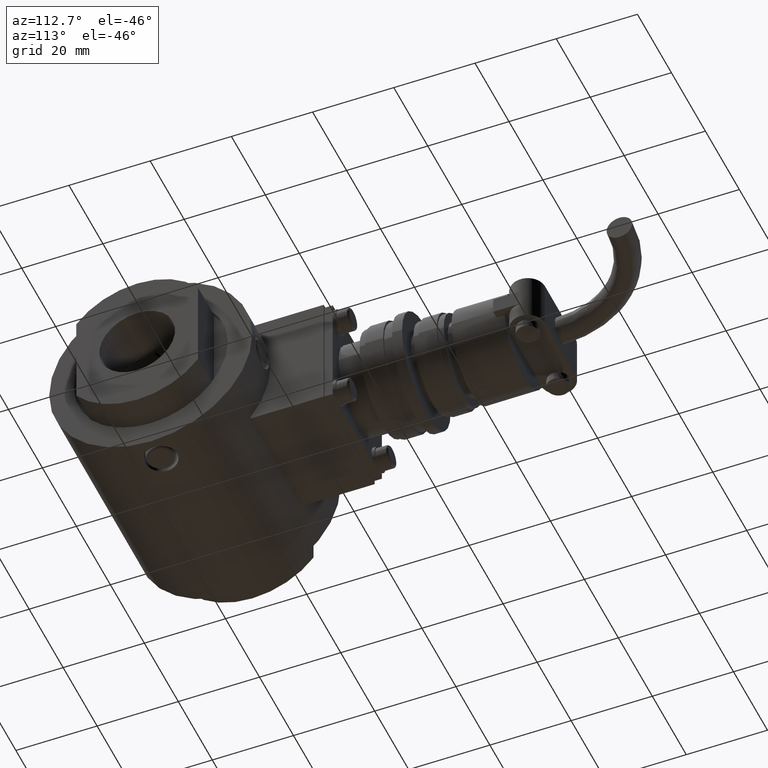
[diagram: clean part render]
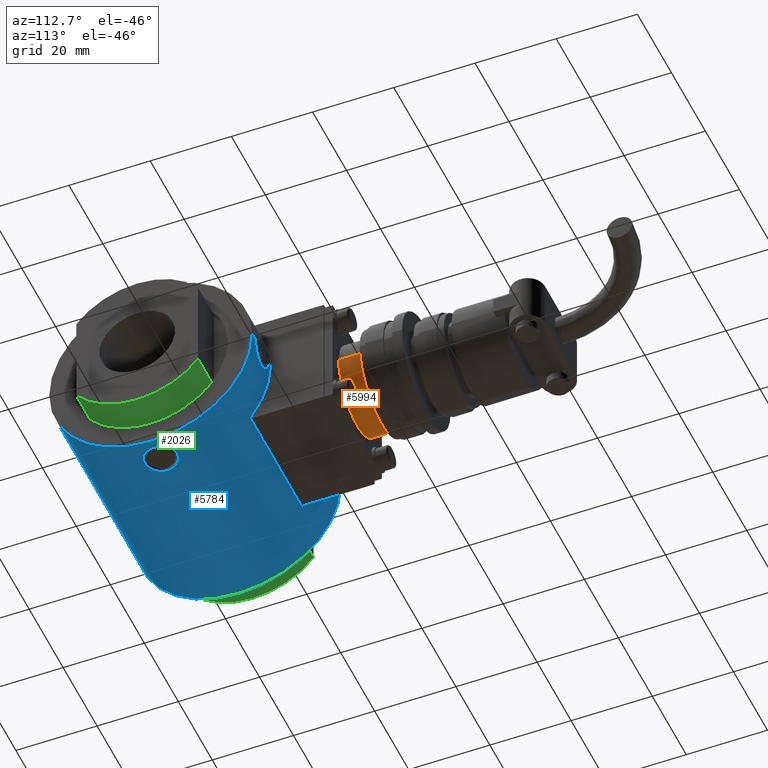
[diagram: same view with three faces highlighted in distinct colors, each labeled with its STEP entity id]
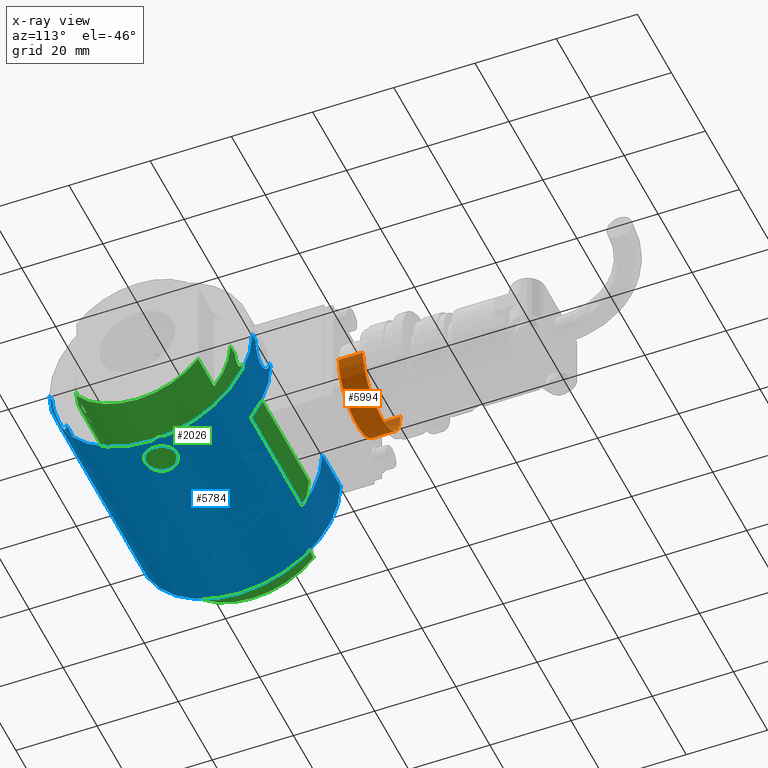
[diagram: x-ray of the same camera — body ghosted, the three highlighted faces saturated]
A machine part, auxiliary view with three faces highlighted in distinct colors.
The next image is the same camera in x-ray (body ghosted, the three faces saturated) — at least one of them is partly hidden behind the body in this view.
Their STEP definitions:

[orange] entity #5994 — the highlighted cylindrical surface (partial cylindrical patch) has radius 11 mm, axis along (-0, -1, 0).
#5953=CARTESIAN_POINT('',(-11.775000000000150,25.750000000000057,0.0));
#5954=DIRECTION('',(-1.224606E-016,1.0,0.0));
#5955=DIRECTION('',(-1.0,0.0,0.0));
#5956=AXIS2_PLACEMENT_3D('',#5953,#5954,#5955);
#5957=CYLINDRICAL_SURFACE('',#5956,10.999999999999970);
#5958=CARTESIAN_POINT('',(-22.775000000000119,28.750000000000057,0.0));
#5959=VERTEX_POINT('',#5958);
#5960=CARTESIAN_POINT('',(-22.775000000000119,22.750000000000057,0.0));
#5961=VERTEX_POINT('',#5960);
#5962=CARTESIAN_POINT('',(-22.775000000000119,28.750000000000057,0.0));
#5963=DIRECTION('',(0.0,-1.0,0.0));
#5964=VECTOR('',#5963,6.0);
#5965=LINE('',#5962,#5964);
#5966=EDGE_CURVE('',#5959,#5961,#5965,.T.);
#5967=ORIENTED_EDGE('',*,*,#5966,.F.);
#5968=CARTESIAN_POINT('',(-0.775000000000180,28.750000000000057,-1.347067E-015));
#5969=VERTEX_POINT('',#5968);
#5970=CARTESIAN_POINT('',(-11.775000000000150,28.750000000000057,0.0));
#5971=DIRECTION('',(0.0,1.0,0.0));
#5972=DIRECTION('',(-1.0,0.0,0.0));
#5973=AXIS2_PLACEMENT_3D('',#5970,#5971,#5972);
#5974=CIRCLE('',#5973,10.999999999999970);
#5975=EDGE_CURVE('',#5969,#5959,#5974,.T.);
#5976=ORIENTED_EDGE('',*,*,#5975,.F.);
#5977=CARTESIAN_POINT('',(-0.775000000000179,22.750000000000057,-1.347067E-015));
#5978=VERTEX_POINT('',#5977);
#5979=CARTESIAN_POINT('',(-0.775000000000180,28.750000000000057,-1.347067E-015));
#5980=DIRECTION('',(0.0,-1.0,0.0));
#5981=VECTOR('',#5980,6.0);
#5982=LINE('',#5979,#5981);
#5983=EDGE_CURVE('',#5969,#5978,#5982,.T.);
#5984=ORIENTED_EDGE('',*,*,#5983,.T.);
#5985=CARTESIAN_POINT('',(-11.775000000000150,22.750000000000057,0.0));
#5986=DIRECTION('',(0.0,1.0,0.0));
#5987=DIRECTION('',(-1.0,0.0,0.0));
#5988=AXIS2_PLACEMENT_3D('',#5985,#5986,#5987);
#5989=CIRCLE('',#5988,10.999999999999970);
#5990=EDGE_CURVE('',#5978,#5961,#5989,.T.);
#5991=ORIENTED_EDGE('',*,*,#5990,.T.);
#5992=EDGE_LOOP('',(#5967,#5976,#5984,#5991));
#5993=FACE_OUTER_BOUND('',#5992,.T.);
#5994=ADVANCED_FACE('',(#5993),#5957,.T.);

[blue] entity #5784 — the highlighted cylindrical surface (partial cylindrical patch) has radius 25 mm, axis along (-1, 0, 0).
#4213=CARTESIAN_POINT('',(26.0,25.0,0.0));
#4214=VERTEX_POINT('',#4213);
#4215=CARTESIAN_POINT('',(15.250000000000000,25.0,0.0));
#4216=VERTEX_POINT('',#4215);
#4217=CARTESIAN_POINT('',(26.0,25.0,0.0));
#4218=DIRECTION('',(-1.0,0.0,0.0));
#4219=VECTOR('',#4218,10.750000000000000);
#4220=LINE('',#4217,#4219);
#4221=EDGE_CURVE('',#4214,#4216,#4220,.T.);
#4223=CARTESIAN_POINT('',(26.0,-25.0,-3.061516E-015));
#4224=VERTEX_POINT('',#4223);
#4232=CARTESIAN_POINT('',(-16.0,-25.0,-5.857267E-015));
#4233=VERTEX_POINT('',#4232);
#4234=CARTESIAN_POINT('',(26.0,-25.0,-3.061516E-015));
#4235=DIRECTION('',(-1.0,0.0,0.0));
#4236=VECTOR('',#4235,42.0);
#4237=LINE('',#4234,#4236);
#4238=EDGE_CURVE('',#4224,#4233,#4237,.T.);
#4240=CARTESIAN_POINT('',(-24.0,-25.0,-5.995204E-015));
#4241=VERTEX_POINT('',#4240);
#4279=CARTESIAN_POINT('',(-26.0,-25.0,-3.061516E-015));
#4280=VERTEX_POINT('',#4279);
#4281=CARTESIAN_POINT('',(-24.0,-25.0,-5.995204E-015));
#4282=DIRECTION('',(-1.0,0.0,0.0));
#4283=VECTOR('',#4282,2.0);
#4284=LINE('',#4281,#4283);
#4285=EDGE_CURVE('',#4241,#4280,#4284,.T.);
#4287=CARTESIAN_POINT('',(-26.0,25.0,0.0));
#4288=VERTEX_POINT('',#4287);
#4296=CARTESIAN_POINT('',(-24.0,25.0,5.995204E-015));
#4297=VERTEX_POINT('',#4296);
#4298=CARTESIAN_POINT('',(-24.0,25.0,5.995204E-015));
#4299=DIRECTION('',(-1.0,0.0,0.0));
#4300=VECTOR('',#4299,2.0);
#4301=LINE('',#4298,#4300);
#4302=EDGE_CURVE('',#4297,#4288,#4301,.T.);
#4304=CARTESIAN_POINT('',(-16.0,25.0,5.857267E-015));
#4305=VERTEX_POINT('',#4304);
#4344=CARTESIAN_POINT('',(-15.250000000000000,25.0,0.0));
#4345=VERTEX_POINT('',#4344);
#4346=CARTESIAN_POINT('',(-15.250000000000000,25.0,0.0));
#4347=DIRECTION('',(-1.0,0.0,0.0));
#4348=VECTOR('',#4347,0.750000000000000);
#4349=LINE('',#4346,#4348);
#4350=EDGE_CURVE('',#4345,#4305,#4349,.T.);
#4498=CARTESIAN_POINT('',(-16.0,-3.061516E-016,25.0));
#4499=VERTEX_POINT('',#4498);
#4508=CARTESIAN_POINT('',(-24.0,-2.220446E-016,25.0));
#4509=VERTEX_POINT('',#4508);
#4510=CARTESIAN_POINT('',(-24.0,-2.220446E-016,25.0));
#4511=CARTESIAN_POINT('',(-24.0,0.251586765531236,25.0));
#4512=CARTESIAN_POINT('',(-23.975881430744547,0.511629585642545,24.996102177963397));
#4513=CARTESIAN_POINT('',(-23.874441083198224,1.028641957652088,24.980167826638958));
#4514=CARTESIAN_POINT('',(-23.797142501676817,1.285616375671321,24.968141521989651));
#4515=CARTESIAN_POINT('',(-23.592899836651537,1.778249521804344,24.937897448883255));
#4516=CARTESIAN_POINT('',(-23.465793295253743,2.014308780643696,24.919682200199720));
#4517=CARTESIAN_POINT('',(-23.172229015780598,2.450739908700049,24.880552138624328));
#4518=CARTESIAN_POINT('',(-23.005751964414927,2.651102285077455,24.859676355010819));
#4519=CARTESIAN_POINT('',(-22.651098270678016,3.005755978814365,24.819292581373674));
#4520=CARTESIAN_POINT('',(-22.450734038191086,3.172233468017627,24.798364181962462));
#4521=CARTESIAN_POINT('',(-22.014304109667645,3.465795933707424,24.759042586974047));
#4522=CARTESIAN_POINT('',(-21.778247906615675,3.592900423300367,24.740689720823944));
#4523=CARTESIAN_POINT('',(-21.285620679829925,3.797140800197111,24.710167609610771));
#4524=CARTESIAN_POINT('',(-21.028649046740558,3.874439182702002,24.698003130196081));
#4525=CARTESIAN_POINT('',(-20.511637399218767,3.975880407250625,24.681876196667464));
#4526=CARTESIAN_POINT('',(-20.251592461122293,4.000000000000000,24.677925358506133));
#4527=CARTESIAN_POINT('',(-20.0,4.000000000000000,24.677925358506133));
#4528=CARTESIAN_POINT('',(-19.748407538877707,4.000000000000000,24.677925358506133));
#4529=CARTESIAN_POINT('',(-19.488362600781233,3.975880407250625,24.681876196667464));
#4530=CARTESIAN_POINT('',(-18.971350953259442,3.874439182702002,24.698003130196081));
#4531=CARTESIAN_POINT('',(-18.714379320170075,3.797140800197111,24.710167609610771));
#4532=CARTESIAN_POINT('',(-18.221752093384325,3.592900423300367,24.740689720823944));
#4533=CARTESIAN_POINT('',(-17.985695890332355,3.465795933707424,24.759042586974047));
#4534=CARTESIAN_POINT('',(-17.549265961808914,3.172233468017627,24.798364181962462));
#4535=CARTESIAN_POINT('',(-17.348901729321984,3.005755978814365,24.819292581373674));
#4536=CARTESIAN_POINT('',(-16.994248035585073,2.651102285077455,24.859676355010819));
#4537=CARTESIAN_POINT('',(-16.827770984219402,2.450739908700049,24.880552138624324));
#4538=CARTESIAN_POINT('',(-16.534206704746257,2.014308780643695,24.919682200199716));
#4539=CARTESIAN_POINT('',(-16.407100163348463,1.778249521804344,24.937897448883255));
#4540=CARTESIAN_POINT('',(-16.202857498323180,1.285616375671322,24.968141521989651));
#4541=CARTESIAN_POINT('',(-16.125558916801776,1.028641957652088,24.980167826638958));
#4542=CARTESIAN_POINT('',(-16.024118569255453,0.511629585642545,24.996102177963397));
#4543=CARTESIAN_POINT('',(-16.0,0.251586765531237,25.0));
#4544=CARTESIAN_POINT('',(-16.0,-3.061516E-016,25.0));
#4545=B_SPLINE_CURVE_WITH_KNOTS('',3,(#4510,#4511,#4512,#4513,#4514,#4515,#4516,#4517,#4518,#4519,#4520,#4521,#4522,#4523,#4524,#4525,#4526,#4527,#4528,#4529,#4530,#4531,#4532,#4533,#4534,#4535,#4536,#4537,#4538,#4539,#4540,#4541,#4542,#4543,#4544),.UNSPECIFIED.,.F.,.U.,(4,2,2,2,2,2,2,2,3,2,2,2,2,2,2,2,4),(18.114452159527076,18.869212456120785,19.623972752714497,20.378733049308210,21.133493345901918,21.888270729268797,22.643048112635675,23.397825496002554,24.152602879369432,24.907380262736311,25.662157646103189,26.416935029470068,27.171712412836946,27.926472709430659,28.681233006024371,29.435993302618080,30.190753599211789),.UNSPECIFIED.);
#4546=EDGE_CURVE('',#4509,#4499,#4545,.T.);
#4797=CARTESIAN_POINT('',(-24.0,-25.0,-5.995204E-015));
#4798=CARTESIAN_POINT('',(-24.0,-25.0,0.251586765531230));
#4799=CARTESIAN_POINT('',(-23.975881430744547,-24.996102177963397,0.511629585642540));
#4800=CARTESIAN_POINT('',(-23.874441083198224,-24.980167826638958,1.028641957652083));
#4801=CARTESIAN_POINT('',(-23.797142501676817,-24.968141521989658,1.285616375671316));
#4802=CARTESIAN_POINT('',(-23.592899836651537,-24.937897448883255,1.778249521804340));
#4803=CARTESIAN_POINT('',(-23.465793295253743,-24.919682200199720,2.014308780643692));
#4804=CARTESIAN_POINT('',(-23.172229015780598,-24.880552138624328,2.450739908700045));
#4805=CARTESIAN_POINT('',(-23.005751964414927,-24.859676355010819,2.651102285077450));
#4806=CARTESIAN_POINT('',(-22.651098270678016,-24.819292581373674,3.005755978814360));
#4807=CARTESIAN_POINT('',(-22.450734038191086,-24.798364181962462,3.172233468017622));
#4808=CARTESIAN_POINT('',(-22.014304109667645,-24.759042586974047,3.465795933707419));
#4809=CARTESIAN_POINT('',(-21.778247906615675,-24.740689720823944,3.592900423300361));
#4810=CARTESIAN_POINT('',(-21.285620679829925,-24.710167609610771,3.797140800197106));
#4811=CARTESIAN_POINT('',(-21.028649046740558,-24.698003130196081,3.874439182701996));
#4812=CARTESIAN_POINT('',(-20.511637399218767,-24.681876196667464,3.975880407250620));
#4813=CARTESIAN_POINT('',(-20.251592461122293,-24.677925358506133,3.999999999999995));
#4814=CARTESIAN_POINT('',(-20.0,-24.677925358506133,3.999999999999995));
#4815=CARTESIAN_POINT('',(-19.748407538877707,-24.677925358506133,3.999999999999995));
#4816=CARTESIAN_POINT('',(-19.488362600781233,-24.681876196667464,3.975880407250620));
#4817=CARTESIAN_POINT('',(-18.971350953259442,-24.698003130196081,3.874439182701996));
#4818=CARTESIAN_POINT('',(-18.714379320170075,-24.710167609610771,3.797140800197106));
#4819=CARTESIAN_POINT('',(-18.221752093384325,-24.740689720823944,3.592900423300361));
#4820=CARTESIAN_POINT('',(-17.985695890332355,-24.759042586974047,3.465795933707419));
#4821=CARTESIAN_POINT('',(-17.549265961808914,-24.798364181962462,3.172233468017622));
#4822=CARTESIAN_POINT('',(-17.348901729321984,-24.819292581373674,3.005755978814360));
#4823=CARTESIAN_POINT('',(-16.994248035585073,-24.859676355010819,2.651102285077450));
#4824=CARTESIAN_POINT('',(-16.827770984219402,-24.880552138624324,2.450739908700043));
#4825=CARTESIAN_POINT('',(-16.534206704746257,-24.919682200199716,2.014308780643690));
#4826=CARTESIAN_POINT('',(-16.407100163348463,-24.937897448883255,1.778249521804339));
#4827=CARTESIAN_POINT('',(-16.202857498323180,-24.968141521989658,1.285616375671316));
#4828=CARTESIAN_POINT('',(-16.125558916801776,-24.980167826638958,1.028641957652082));
#4829=CARTESIAN_POINT('',(-16.024118569255453,-24.996102177963397,0.511629585642539));
#4830=CARTESIAN_POINT('',(-16.0,-25.0,0.251586765531231));
#4831=CARTESIAN_POINT('',(-16.0,-25.0,-5.857267E-015));
#4832=B_SPLINE_CURVE_WITH_KNOTS('',3,(#4797,#4798,#4799,#4800,#4801,#4802,#4803,#4804,#4805,#4806,#4807,#4808,#4809,#4810,#4811,#4812,#4813,#4814,#4815,#4816,#4817,#4818,#4819,#4820,#4821,#4822,#4823,#4824,#4825,#4826,#4827,#4828,#4829,#4830,#4831),.UNSPECIFIED.,.F.,.U.,(4,2,2,2,2,2,2,2,3,2,2,2,2,2,2,2,4),(18.114452159527076,18.869212456120785,19.623972752714497,20.378733049308210,21.133493345901918,21.888270729268797,22.643048112635675,23.397825496002554,24.152602879369432,24.907380262736311,25.662157646103189,26.416935029470068,27.171712412836946,27.926472709430659,28.681233006024371,29.435993302618080,30.190753599211792),.UNSPECIFIED.);
#4833=EDGE_CURVE('',#4241,#4233,#4832,.T.);
#5538=CARTESIAN_POINT('',(-16.0,25.0,5.857267E-015));
#5539=CARTESIAN_POINT('',(-16.0,25.0,0.251586765531243));
#5540=CARTESIAN_POINT('',(-16.024118569255453,24.996102177963397,0.511629585642551));
#5541=CARTESIAN_POINT('',(-16.125558916801776,24.980167826638958,1.028641957652093));
#5542=CARTESIAN_POINT('',(-16.202857498323180,24.968141521989651,1.285616375671327));
#5543=CARTESIAN_POINT('',(-16.407100163348463,24.937897448883255,1.778249521804350));
#5544=CARTESIAN_POINT('',(-16.534206704746257,24.919682200199716,2.014308780643701));
#5545=CARTESIAN_POINT('',(-16.827770984219402,24.880552138624324,2.450739908700055));
#5546=CARTESIAN_POINT('',(-16.994248035585073,24.859676355010819,2.651102285077460));
#5547=CARTESIAN_POINT('',(-17.348901729321984,24.819292581373674,3.005755978814371));
#5548=CARTESIAN_POINT('',(-17.549265961808914,24.798364181962462,3.172233468017633));
#5549=CARTESIAN_POINT('',(-17.985695890332355,24.759042586974047,3.465795933707430));
#5550=CARTESIAN_POINT('',(-18.221752093384325,24.740689720823944,3.592900423300373));
#5551=CARTESIAN_POINT('',(-18.714379320170075,24.710167609610771,3.797140800197117));
#5552=CARTESIAN_POINT('',(-18.971350953259442,24.698003130196078,3.874439182702008));
#5553=CARTESIAN_POINT('',(-19.488362600781233,24.681876196667460,3.975880407250632));
#5554=CARTESIAN_POINT('',(-19.748407538877707,24.677925358506130,4.000000000000005));
#5555=CARTESIAN_POINT('',(-20.251592461122293,24.677925358506130,4.000000000000005));
#5556=CARTESIAN_POINT('',(-20.511637399218767,24.681876196667460,3.975880407250632));
#5557=CARTESIAN_POINT('',(-21.028649046740558,24.698003130196078,3.874439182702008));
#5558=CARTESIAN_POINT('',(-21.285620679829925,24.710167609610771,3.797140800197117));
#5559=CARTESIAN_POINT('',(-21.778247906615668,24.740689720823944,3.592900423300375));
#5560=CARTESIAN_POINT('',(-22.014304109667641,24.759042586974044,3.465795933707434));
#5561=CARTESIAN_POINT('',(-22.450734038191086,24.798364181962459,3.172233468017636));
#5562=CARTESIAN_POINT('',(-22.651098270678016,24.819292581373674,3.005755978814372));
#5563=CARTESIAN_POINT('',(-23.005751964414927,24.859676355010819,2.651102285077461));
#5564=CARTESIAN_POINT('',(-23.172229015780598,24.880552138624324,2.450739908700055));
#5565=CARTESIAN_POINT('',(-23.465793295253743,24.919682200199716,2.014308780643703));
#5566=CARTESIAN_POINT('',(-23.592899836651540,24.937897448883255,1.778249521804353));
#5567=CARTESIAN_POINT('',(-23.797142501676820,24.968141521989651,1.285616375671329));
#5568=CARTESIAN_POINT('',(-23.874441083198224,24.980167826638958,1.028641957652097));
#5569=CARTESIAN_POINT('',(-23.975881430744547,24.996102177963397,0.511629585642553));
#5570=CARTESIAN_POINT('',(-24.0,25.0,0.251586765531242));
#5571=CARTESIAN_POINT('',(-24.0,25.0,5.995204E-015));
#5572=B_SPLINE_CURVE_WITH_KNOTS('',3,(#5538,#5539,#5540,#5541,#5542,#5543,#5544,#5545,#5546,#5547,#5548,#5549,#5550,#5551,#5552,#5553,#5554,#5555,#5556,#5557,#5558,#5559,#5560,#5561,#5562,#5563,#5564,#5565,#5566,#5567,#5568,#5569,#5570,#5571),.UNSPECIFIED.,.F.,.U.,(4,2,2,2,2,2,2,2,2,2,2,2,2,2,2,2,4),(6.038150719842360,6.792911016436070,7.547671313029781,8.302431609623492,9.057191906217202,9.811969289584081,10.566746672950959,11.321524056317838,12.076301439684716,12.831078823051595,13.585856206418473,14.340633589785352,15.095410973152232,15.850171269745942,16.604931566339655,17.359691862933367,18.114452159527076),.UNSPECIFIED.);
#5573=EDGE_CURVE('',#4305,#4297,#5572,.T.);
#5612=CARTESIAN_POINT('',(-16.0,-3.061516E-016,25.0));
#5613=CARTESIAN_POINT('',(-16.0,-0.251586765531237,25.0));
#5614=CARTESIAN_POINT('',(-16.024118569255453,-0.511629585642545,24.996102177963397));
#5615=CARTESIAN_POINT('',(-16.125558916801776,-1.028641957652088,24.980167826638958));
#5616=CARTESIAN_POINT('',(-16.202857498323180,-1.285616375671322,24.968141521989651));
#5617=CARTESIAN_POINT('',(-16.407100163348463,-1.778249521804344,24.937897448883255));
#5618=CARTESIAN_POINT('',(-16.534206704746257,-2.014308780643696,24.919682200199716));
#5619=CARTESIAN_POINT('',(-16.827770984219402,-2.450739908700049,24.880552138624324));
#5620=CARTESIAN_POINT('',(-16.994248035585073,-2.651102285077456,24.859676355010819));
#5621=CARTESIAN_POINT('',(-17.348901729321984,-3.005755978814366,24.819292581373674));
#5622=CARTESIAN_POINT('',(-17.549265961808914,-3.172233468017628,24.798364181962462));
#5623=CARTESIAN_POINT('',(-17.985695890332355,-3.465795933707425,24.759042586974047));
#5624=CARTESIAN_POINT('',(-18.221752093384325,-3.592900423300367,24.740689720823944));
#5625=CARTESIAN_POINT('',(-18.714379320170075,-3.797140800197112,24.710167609610771));
#5626=CARTESIAN_POINT('',(-18.971350953259439,-3.874439182702002,24.698003130196081));
#5627=CARTESIAN_POINT('',(-19.488362600781230,-3.975880407250625,24.681876196667464));
#5628=CARTESIAN_POINT('',(-19.748407538877707,-4.0,24.677925358506133));
#5629=CARTESIAN_POINT('',(-20.251592461122293,-4.0,24.677925358506133));
#5630=CARTESIAN_POINT('',(-20.511637399218767,-3.975880407250626,24.681876196667464));
#5631=CARTESIAN_POINT('',(-21.028649046740558,-3.874439182702003,24.698003130196081));
#5632=CARTESIAN_POINT('',(-21.285620679829925,-3.797140800197112,24.710167609610771));
#5633=CARTESIAN_POINT('',(-21.778247906615675,-3.592900423300367,24.740689720823944));
#5634=CARTESIAN_POINT('',(-22.014304109667645,-3.465795933707425,24.759042586974047));
#5635=CARTESIAN_POINT('',(-22.450734038191086,-3.172233468017628,24.798364181962462));
#5636=CARTESIAN_POINT('',(-22.651098270678016,-3.005755978814366,24.819292581373674));
#5637=CARTESIAN_POINT('',(-23.005751964414927,-2.651102285077456,24.859676355010819));
#5638=CARTESIAN_POINT('',(-23.172229015780598,-2.450739908700050,24.880552138624324));
#5639=CARTESIAN_POINT('',(-23.465793295253743,-2.014308780643697,24.919682200199716));
#5640=CARTESIAN_POINT('',(-23.592899836651537,-1.778249521804345,24.937897448883255));
#5641=CARTESIAN_POINT('',(-23.797142501676820,-1.285616375671322,24.968141521989651));
#5642=CARTESIAN_POINT('',(-23.874441083198224,-1.028641957652088,24.980167826638958));
#5643=CARTESIAN_POINT('',(-23.975881430744547,-0.511629585642545,24.996102177963397));
#5644=CARTESIAN_POINT('',(-24.0,-0.251586765531238,25.0));
#5645=CARTESIAN_POINT('',(-24.0,-2.220446E-016,25.0));
#5646=B_SPLINE_CURVE_WITH_KNOTS('',3,(#5612,#5613,#5614,#5615,#5616,#5617,#5618,#5619,#5620,#5621,#5622,#5623,#5624,#5625,#5626,#5627,#5628,#5629,#5630,#5631,#5632,#5633,#5634,#5635,#5636,#5637,#5638,#5639,#5640,#5641,#5642,#5643,#5644,#5645),.UNSPECIFIED.,.F.,.U.,(4,2,2,2,2,2,2,2,2,2,2,2,2,2,2,2,4),(6.038150719842358,6.792911016436069,7.547671313029779,8.302431609623490,9.057191906217200,9.811969289584081,10.566746672950959,11.321524056317838,12.076301439684716,12.831078823051595,13.585856206418473,14.340633589785352,15.095410973152230,15.850171269745941,16.604931566339651,17.359691862933364,18.114452159527076),.UNSPECIFIED.);
#5647=EDGE_CURVE('',#4499,#4509,#5646,.T.);
#5670=CARTESIAN_POINT('',(-15.250000000000000,20.0,15.0));
#5671=VERTEX_POINT('',#5670);
#5678=CARTESIAN_POINT('',(15.250000000000000,20.0,15.0));
#5679=VERTEX_POINT('',#5678);
#5680=CARTESIAN_POINT('',(15.250000000000000,20.0,15.0));
#5681=DIRECTION('',(-1.0,0.0,0.0));
#5682=VECTOR('',#5681,30.500000000000000);
#5683=LINE('',#5680,#5682);
#5684=EDGE_CURVE('',#5679,#5671,#5683,.T.);
#5722=CARTESIAN_POINT('',(15.250000000000000,0.0,0.0));
#5723=DIRECTION('',(1.0,0.0,0.0));
#5724=DIRECTION('',(0.0,1.0,0.0));
#5725=AXIS2_PLACEMENT_3D('',#5722,#5723,#5724);
#5726=CIRCLE('',#5725,25.0);
#5727=EDGE_CURVE('',#4216,#5679,#5726,.T.);
#5737=CARTESIAN_POINT('',(-15.250000000000000,0.0,0.0));
#5738=DIRECTION('',(-1.0,0.0,0.0));
#5739=DIRECTION('',(0.0,1.0,0.0));
#5740=AXIS2_PLACEMENT_3D('',#5737,#5738,#5739);
#5741=CIRCLE('',#5740,25.0);
#5742=EDGE_CURVE('',#5671,#4345,#5741,.T.);
#5749=CARTESIAN_POINT('',(0.0,0.0,0.0));
#5750=DIRECTION('',(1.0,0.0,0.0));
#5751=DIRECTION('',(0.0,1.0,0.0));
#5752=AXIS2_PLACEMENT_3D('',#5749,#5750,#5751);
#5753=CYLINDRICAL_SURFACE('',#5752,25.0);
#5754=ORIENTED_EDGE('',*,*,#4221,.T.);
#5755=ORIENTED_EDGE('',*,*,#5727,.T.);
#5756=ORIENTED_EDGE('',*,*,#5684,.T.);
#5757=ORIENTED_EDGE('',*,*,#5742,.T.);
#5758=ORIENTED_EDGE('',*,*,#4350,.T.);
#5759=ORIENTED_EDGE('',*,*,#5573,.T.);
#5760=ORIENTED_EDGE('',*,*,#4302,.T.);
#5761=CARTESIAN_POINT('',(-26.0,0.0,0.0));
#5762=DIRECTION('',(1.0,0.0,0.0));
#5763=DIRECTION('',(0.0,1.0,0.0));
#5764=AXIS2_PLACEMENT_3D('',#5761,#5762,#5763);
#5765=CIRCLE('',#5764,25.0);
#5766=EDGE_CURVE('',#4288,#4280,#5765,.T.);
#5767=ORIENTED_EDGE('',*,*,#5766,.T.);
#5768=ORIENTED_EDGE('',*,*,#4285,.F.);
#5769=ORIENTED_EDGE('',*,*,#4833,.T.);
#5770=ORIENTED_EDGE('',*,*,#4238,.F.);
#5771=CARTESIAN_POINT('',(26.0,0.0,0.0));
#5772=DIRECTION('',(1.0,0.0,0.0));
#5773=DIRECTION('',(0.0,1.0,0.0));
#5774=AXIS2_PLACEMENT_3D('',#5771,#5772,#5773);
#5775=CIRCLE('',#5774,25.0);
#5776=EDGE_CURVE('',#4214,#4224,#5775,.T.);
#5777=ORIENTED_EDGE('',*,*,#5776,.F.);
#5778=EDGE_LOOP('',(#5754,#5755,#5756,#5757,#5758,#5759,#5760,#5767,#5768,#5769,#5770,#5777));
#5779=FACE_OUTER_BOUND('',#5778,.T.);
#5780=ORIENTED_EDGE('',*,*,#5647,.T.);
#5781=ORIENTED_EDGE('',*,*,#4546,.T.);
#5782=EDGE_LOOP('',(#5780,#5781));
#5783=FACE_BOUND('',#5782,.T.);
#5784=ADVANCED_FACE('',(#5779,#5783),#5753,.T.);

[green] entity #2026 — the highlighted cylindrical surface (partial cylindrical patch) has radius 19 mm, axis along (1, 0, 0).
#1729=CARTESIAN_POINT('',(-5.684342E-014,-2.842171E-014,0.0));
#1730=DIRECTION('',(1.0,0.0,0.0));
#1731=DIRECTION('',(0.0,1.0,0.0));
#1732=AXIS2_PLACEMENT_3D('',#1729,#1730,#1731);
#1733=CYLINDRICAL_SURFACE('',#1732,19.0);
#1734=CARTESIAN_POINT('',(24.567905107108370,18.999999999999972,0.0));
#1735=VERTEX_POINT('',#1734);
#1736=CARTESIAN_POINT('',(21.711000000000013,18.999999999999972,-2.420633E-014));
#1737=VERTEX_POINT('',#1736);
#1738=CARTESIAN_POINT('',(24.567905107108370,18.999999999999972,0.0));
#1739=DIRECTION('',(-1.0,0.0,0.0));
#1740=VECTOR('',#1739,2.856905107108357);
#1741=LINE('',#1738,#1740);
#1742=EDGE_CURVE('',#1735,#1737,#1741,.T.);
#1743=ORIENTED_EDGE('',*,*,#1742,.F.);
#1744=CARTESIAN_POINT('',(24.567905107108373,15.0,-11.661903789690564));
#1745=VERTEX_POINT('',#1744);
#1746=CARTESIAN_POINT('',(24.567905107108373,-2.842171E-014,0.0));
#1747=DIRECTION('',(-1.0,0.0,0.0));
#1748=DIRECTION('',(0.0,1.0,0.0));
#1749=AXIS2_PLACEMENT_3D('',#1746,#1747,#1748);
#1750=CIRCLE('',#1749,19.0);
#1751=EDGE_CURVE('',#1735,#1745,#1750,.T.);
#1752=ORIENTED_EDGE('',*,*,#1751,.T.);
#1753=CARTESIAN_POINT('',(33.999999999999972,15.0,-11.661903789690564));
#1754=VERTEX_POINT('',#1753);
#1755=CARTESIAN_POINT('',(24.567905107108373,15.0,-11.661903789690564));
#1756=DIRECTION('',(1.0,0.0,0.0));
#1757=VECTOR('',#1756,9.432094892891598);
#1758=LINE('',#1755,#1757);
#1759=EDGE_CURVE('',#1745,#1754,#1758,.T.);
#1760=ORIENTED_EDGE('',*,*,#1759,.T.);
#1761=CARTESIAN_POINT('',(33.999999999999972,-14.999999999999972,-11.661903789690674));
#1762=VERTEX_POINT('',#1761);
#1763=CARTESIAN_POINT('',(33.999999999999915,-2.842171E-014,0.0));
#1764=DIRECTION('',(1.0,0.0,0.0));
#1765=DIRECTION('',(0.0,1.0,0.0));
#1766=AXIS2_PLACEMENT_3D('',#1763,#1764,#1765);
#1767=CIRCLE('',#1766,19.0);
#1768=EDGE_CURVE('',#1762,#1754,#1767,.T.);
#1769=ORIENTED_EDGE('',*,*,#1768,.F.);
#1770=CARTESIAN_POINT('',(24.567905107108373,-15.0,-11.661903789690637));
#1771=VERTEX_POINT('',#1770);
#1772=CARTESIAN_POINT('',(33.999999999999972,-14.999999999999972,-11.661903789690674));
#1773=DIRECTION('',(-1.0,0.0,0.0));
#1774=VECTOR('',#1773,9.432094892891598);
#1775=LINE('',#1772,#1774);
#1776=EDGE_CURVE('',#1762,#1771,#1775,.T.);
#1777=ORIENTED_EDGE('',*,*,#1776,.T.);
#1778=CARTESIAN_POINT('',(24.567905107108377,-19.000000000000028,-2.326752E-015));
#1779=VERTEX_POINT('',#1778);
#1780=CARTESIAN_POINT('',(24.567905107108373,-2.842171E-014,0.0));
#1781=DIRECTION('',(-1.0,0.0,0.0));
#1782=DIRECTION('',(0.0,1.0,0.0));
#1783=AXIS2_PLACEMENT_3D('',#1780,#1781,#1782);
#1784=CIRCLE('',#1783,19.0);
#1785=EDGE_CURVE('',#1771,#1779,#1784,.T.);
#1786=ORIENTED_EDGE('',*,*,#1785,.T.);
#1787=CARTESIAN_POINT('',(21.711000000000013,-19.000000000000028,2.420633E-014));
#1788=VERTEX_POINT('',#1787);
#1789=CARTESIAN_POINT('',(24.567905107108377,-19.000000000000028,-2.326752E-015));
#1790=DIRECTION('',(-1.0,0.0,0.0));
#1791=VECTOR('',#1790,2.856905107108364);
#1792=LINE('',#1789,#1791);
#1793=EDGE_CURVE('',#1779,#1788,#1792,.T.);
#1794=ORIENTED_EDGE('',*,*,#1793,.T.);
#1795=CARTESIAN_POINT('',(18.289000000000016,-19.000000000000028,2.418273E-014));
#1796=VERTEX_POINT('',#1795);
#1797=CARTESIAN_POINT('',(21.711000000000013,-19.000000000000028,2.420633E-014));
#1798=CARTESIAN_POINT('',(21.711000000000013,-19.000000000000028,-0.107480863247070));
#1799=CARTESIAN_POINT('',(21.700709314481731,-18.999063806142750,-0.218614434748040));
#1800=CARTESIAN_POINT('',(21.657381320875825,-18.995234301800764,-0.439649406522325));
#1801=CARTESIAN_POINT('',(21.624353481804235,-18.992343457973618,-0.549552705566230));
#1802=CARTESIAN_POINT('',(21.537028405107911,-18.985074192979177,-0.760313152109222));
#1803=CARTESIAN_POINT('',(21.482661653775406,-18.980696553282307,-0.861339257536861));
#1804=CARTESIAN_POINT('',(21.357042893489950,-18.971297306273520,-1.048153367282733));
#1805=CARTESIAN_POINT('',(21.285782913627472,-18.966285240790519,-1.133936491592883));
#1806=CARTESIAN_POINT('',(21.133936321944898,-18.956596469055892,-1.285783083275456));
#1807=CARTESIAN_POINT('',(21.048153119438989,-18.951580441826867,-1.357043081379481));
#1808=CARTESIAN_POINT('',(20.861339061249144,-18.942166751979574,-1.482661764531572));
#1809=CARTESIAN_POINT('',(20.760313086560636,-18.937778731849392,-1.537028430596521));
#1810=CARTESIAN_POINT('',(20.549552888752125,-18.930488522849316,-1.624353407574523));
#1811=CARTESIAN_POINT('',(20.439649707065179,-18.927587285427727,-1.657381240418385));
#1812=CARTESIAN_POINT('',(20.218614764791663,-18.923743313573851,-1.700709271329436));
#1813=CARTESIAN_POINT('',(20.107481103409707,-18.922803148582432,-1.710999999999976));
#1814=CARTESIAN_POINT('',(19.892518896590325,-18.922803148582432,-1.710999999999976));
#1815=CARTESIAN_POINT('',(19.781385235208372,-18.923743313573851,-1.700709271329437));
#1816=CARTESIAN_POINT('',(19.560350292934853,-18.927587285427727,-1.657381240418386));
#1817=CARTESIAN_POINT('',(19.450447111247904,-18.930488522849316,-1.624353407574523));
#1818=CARTESIAN_POINT('',(19.239686913439392,-18.937778731849392,-1.537028430596521));
#1819=CARTESIAN_POINT('',(19.138660938750885,-18.942166751979574,-1.482661764531571));
#1820=CARTESIAN_POINT('',(18.951846880561039,-18.951580441826867,-1.357043081379481));
#1821=CARTESIAN_POINT('',(18.866063678055131,-18.956596469055892,-1.285783083275455));
#1822=CARTESIAN_POINT('',(18.714217086372557,-18.966285240790519,-1.133936491592883));
#1823=CARTESIAN_POINT('',(18.642957106510078,-18.971297306273520,-1.048153367282733));
#1824=CARTESIAN_POINT('',(18.517338346224623,-18.980696553282307,-0.861339257536860));
#1825=CARTESIAN_POINT('',(18.462971594892117,-18.985074192979177,-0.760313152109221));
#1826=CARTESIAN_POINT('',(18.375646518195794,-18.992343457973618,-0.549552705566230));
#1827=CARTESIAN_POINT('',(18.342618679124204,-18.995234301800764,-0.439649406522325));
#1828=CARTESIAN_POINT('',(18.299290685518297,-18.999063806142750,-0.218614434748040));
#1829=CARTESIAN_POINT('',(18.289000000000016,-19.000000000000028,-0.107480863247070));
#1830=CARTESIAN_POINT('',(18.289000000000016,-19.000000000000028,2.418273E-014));
#1831=B_SPLINE_CURVE_WITH_KNOTS('',3,(#1797,#1798,#1799,#1800,#1801,#1802,#1803,#1804,#1805,#1806,#1807,#1808,#1809,#1810,#1811,#1812,#1813,#1814,#1815,#1816,#1817,#1818,#1819,#1820,#1821,#1822,#1823,#1824,#1825,#1826,#1827,#1828,#1829,#1830),.UNSPECIFIED.,.F.,.U.,(4,2,2,2,2,2,2,2,2,2,2,2,2,2,2,2,4),(2.579543599881442,2.901986189622724,3.224428779364005,3.546871369105287,3.869313958846568,4.191757269075648,4.514200579304728,4.836643889533807,5.159087199762886,5.481530509991965,5.803973820221044,6.126417130450124,6.448860440679203,6.771303030420484,7.093745620161766,7.416188209903047,7.738630799644328),.UNSPECIFIED.);
#1832=EDGE_CURVE('',#1788,#1796,#1831,.T.);
#1833=ORIENTED_EDGE('',*,*,#1832,.T.);
#1834=CARTESIAN_POINT('',(-21.748550544584063,-19.000000000000028,-2.326752E-015));
#1835=VERTEX_POINT('',#1834);
#1836=CARTESIAN_POINT('',(18.289000000000016,-19.000000000000028,2.418273E-014));
#1837=DIRECTION('',(-1.0,0.0,0.0));
#1838=VECTOR('',#1837,40.037550544584079);
#1839=LINE('',#1836,#1838);
#1840=EDGE_CURVE('',#1796,#1835,#1839,.T.);
#1841=ORIENTED_EDGE('',*,*,#1840,.T.);
#1842=CARTESIAN_POINT('',(-21.748550544584059,-15.0,-11.661903789690637));
#1843=VERTEX_POINT('',#1842);
#1844=CARTESIAN_POINT('',(-21.748550544584063,-2.842171E-014,0.0));
#1845=DIRECTION('',(1.0,0.0,0.0));
#1846=DIRECTION('',(0.0,1.0,0.0));
#1847=AXIS2_PLACEMENT_3D('',#1844,#1845,#1846);
#1848=CIRCLE('',#1847,19.0);
#1849=EDGE_CURVE('',#1835,#1843,#1848,.T.);
#1850=ORIENTED_EDGE('',*,*,#1849,.T.);
#1851=CARTESIAN_POINT('',(-34.000000000000028,-15.000000000000002,-11.661903789690635));
#1852=VERTEX_POINT('',#1851);
#1853=CARTESIAN_POINT('',(-21.748550544584059,-15.0,-11.661903789690637));
#1854=DIRECTION('',(-1.0,0.0,0.0));
#1855=VECTOR('',#1854,12.251449455415969);
#1856=LINE('',#1853,#1855);
#1857=EDGE_CURVE('',#1843,#1852,#1856,.T.);
#1858=ORIENTED_EDGE('',*,*,#1857,.T.);
#1859=CARTESIAN_POINT('',(-34.000000000000028,15.0,-11.661903789690564));
#1860=VERTEX_POINT('',#1859);
#1861=CARTESIAN_POINT('',(-34.000000000000028,-2.842171E-014,0.0));
#1862=DIRECTION('',(1.0,0.0,0.0));
#1863=DIRECTION('',(0.0,1.0,0.0));
#1864=AXIS2_PLACEMENT_3D('',#1861,#1862,#1863);
#1865=CIRCLE('',#1864,19.0);
#1866=EDGE_CURVE('',#1852,#1860,#1865,.T.);
#1867=ORIENTED_EDGE('',*,*,#1866,.T.);
#1868=CARTESIAN_POINT('',(-21.748550544584059,15.0,-11.661903789690564));
#1869=VERTEX_POINT('',#1868);
#1870=CARTESIAN_POINT('',(-34.000000000000028,15.0,-11.661903789690564));
#1871=DIRECTION('',(1.0,0.0,0.0));
#1872=VECTOR('',#1871,12.251449455415969);
#1873=LINE('',#1870,#1872);
#1874=EDGE_CURVE('',#1860,#1869,#1873,.T.);
#1875=ORIENTED_EDGE('',*,*,#1874,.T.);
#1876=CARTESIAN_POINT('',(-21.748550544584063,18.999999999999972,0.0));
#1877=VERTEX_POINT('',#1876);
#1878=CARTESIAN_POINT('',(-21.748550544584063,-2.842171E-014,0.0));
#1879=DIRECTION('',(1.0,0.0,0.0));
#1880=DIRECTION('',(0.0,1.0,0.0));
#1881=AXIS2_PLACEMENT_3D('',#1878,#1879,#1880);
#1882=CIRCLE('',#1881,19.0);
#1883=EDGE_CURVE('',#1869,#1877,#1882,.T.);
#1884=ORIENTED_EDGE('',*,*,#1883,.T.);
#1885=CARTESIAN_POINT('',(18.289000000000016,18.999999999999972,-2.418273E-014));
#1886=VERTEX_POINT('',#1885);
#1887=CARTESIAN_POINT('',(18.289000000000016,18.999999999999972,-2.418273E-014));
#1888=DIRECTION('',(-1.0,0.0,0.0));
#1889=VECTOR('',#1888,40.037550544584079);
#1890=LINE('',#1887,#1889);
#1891=EDGE_CURVE('',#1886,#1877,#1890,.T.);
#1892=ORIENTED_EDGE('',*,*,#1891,.F.);
#1893=CARTESIAN_POINT('',(20.000000000000014,18.922803148582368,-1.711000000000024));
#1894=VERTEX_POINT('',#1893);
#1895=CARTESIAN_POINT('',(18.289000000000016,18.999999999999972,-2.418273E-014));
#1896=CARTESIAN_POINT('',(18.289000000000016,18.999999999999972,-0.107480863247118));
#1897=CARTESIAN_POINT('',(18.299290685518297,18.999063806142690,-0.218614434748087));
#1898=CARTESIAN_POINT('',(18.342618679124204,18.995234301800703,-0.439649406522372));
#1899=CARTESIAN_POINT('',(18.375646518195794,18.992343457973554,-0.549552705566278));
#1900=CARTESIAN_POINT('',(18.462971594892117,18.985074192979120,-0.760313152109269));
#1901=CARTESIAN_POINT('',(18.517338346224623,18.980696553282250,-0.861339257536909));
#1902=CARTESIAN_POINT('',(18.642957106510078,18.971297306273463,-1.048153367282781));
#1903=CARTESIAN_POINT('',(18.714217086372557,18.966285240790455,-1.133936491592931));
#1904=CARTESIAN_POINT('',(18.866063678055131,18.956596469055828,-1.285783083275504));
#1905=CARTESIAN_POINT('',(18.951846880561039,18.951580441826806,-1.357043081379529));
#1906=CARTESIAN_POINT('',(19.138660938750885,18.942166751979514,-1.482661764531620));
#1907=CARTESIAN_POINT('',(19.239686913439392,18.937778731849328,-1.537028430596570));
#1908=CARTESIAN_POINT('',(19.450447111247904,18.930488522849252,-1.624353407574571));
#1909=CARTESIAN_POINT('',(19.560350292934849,18.927587285427663,-1.657381240418433));
#1910=CARTESIAN_POINT('',(19.781385235208365,18.923743313573787,-1.700709271329485));
#1911=CARTESIAN_POINT('',(19.892518896590321,18.922803148582371,-1.711000000000025));
#1912=CARTESIAN_POINT('',(20.000000000000014,18.922803148582371,-1.711000000000025));
#1913=B_SPLINE_CURVE_WITH_KNOTS('',3,(#1895,#1896,#1897,#1898,#1899,#1900,#1901,#1902,#1903,#1904,#1905,#1906,#1907,#1908,#1909,#1910,#1911,#1912),.UNSPECIFIED.,.F.,.U.,(4,2,2,2,2,2,2,2,4),(7.738630799644328,8.061073389385609,8.383515979126891,8.705958568868173,9.028401158609455,9.350844468838535,9.673287779067614,9.995731089296694,10.318174399525773),.UNSPECIFIED.);
#1914=EDGE_CURVE('',#1886,#1894,#1913,.T.);
#1915=ORIENTED_EDGE('',*,*,#1914,.T.);
#1916=CARTESIAN_POINT('',(20.000000000000014,18.922803148582368,-1.711000000000024));
#1917=CARTESIAN_POINT('',(20.107481103409707,18.922803148582371,-1.711000000000025));
#1918=CARTESIAN_POINT('',(20.218614764791663,18.923743313573787,-1.700709271329485));
#1919=CARTESIAN_POINT('',(20.439649707065179,18.927587285427663,-1.657381240418433));
#1920=CARTESIAN_POINT('',(20.549552888752125,18.930488522849252,-1.624353407574571));
#1921=CARTESIAN_POINT('',(20.760313086560636,18.937778731849328,-1.537028430596570));
#1922=CARTESIAN_POINT('',(20.861339061249144,18.942166751979514,-1.482661764531620));
#1923=CARTESIAN_POINT('',(21.048153119438989,18.951580441826806,-1.357043081379530));
#1924=CARTESIAN_POINT('',(21.133936321944898,18.956596469055828,-1.285783083275504));
#1925=CARTESIAN_POINT('',(21.285782913627472,18.966285240790455,-1.133936491592932));
#1926=CARTESIAN_POINT('',(21.357042893489950,18.971297306273463,-1.048153367282782));
#1927=CARTESIAN_POINT('',(21.482661653775406,18.980696553282250,-0.861339257536909));
#1928=CARTESIAN_POINT('',(21.537028405107911,18.985074192979120,-0.760313152109270));
#1929=CARTESIAN_POINT('',(21.624353481804235,18.992343457973554,-0.549552705566279));
#1930=CARTESIAN_POINT('',(21.657381320875825,18.995234301800707,-0.439649406522373));
#1931=CARTESIAN_POINT('',(21.700709314481731,18.999063806142694,-0.218614434748088));
#1932=CARTESIAN_POINT('',(21.711000000000013,18.999999999999972,-0.107480863247118));
#1933=CARTESIAN_POINT('',(21.711000000000013,18.999999999999972,-2.420633E-014));
#1934=B_SPLINE_CURVE_WITH_KNOTS('',3,(#1916,#1917,#1918,#1919,#1920,#1921,#1922,#1923,#1924,#1925,#1926,#1927,#1928,#1929,#1930,#1931,#1932,#1933),.UNSPECIFIED.,.F.,.U.,(4,2,2,2,2,2,2,2,4),(0.0,0.322443310229079,0.644886620458159,0.967329930687238,1.289773240916317,1.612215830657599,1.934658420398880,2.257101010140161,2.579543599881442),.UNSPECIFIED.);
#1935=EDGE_CURVE('',#1894,#1737,#1934,.T.);
#1936=ORIENTED_EDGE('',*,*,#1935,.T.);
#1937=EDGE_LOOP('',(#1743,#1752,#1760,#1769,#1777,#1786,#1794,#1833,#1841,#1850,#1858,#1867,#1875,#1884,#1892,#1915,#1936));
#1938=FACE_OUTER_BOUND('',#1937,.T.);
#1939=CARTESIAN_POINT('',(20.000000000000014,-1.711000000000055,-18.922803148582396));
#1940=VERTEX_POINT('',#1939);
#1941=CARTESIAN_POINT('',(21.711000000000013,-5.451774E-014,-19.0));
#1942=VERTEX_POINT('',#1941);
#1943=CARTESIAN_POINT('',(20.000000000000014,-1.711000000000055,-18.922803148582396));
#1944=CARTESIAN_POINT('',(20.107481103409707,-1.711000000000055,-18.922803148582400));
#1945=CARTESIAN_POINT('',(20.218614764791663,-1.700709271329515,-18.923743313573823));
#1946=CARTESIAN_POINT('',(20.439649707065179,-1.657381240418463,-18.927587285427698));
#1947=CARTESIAN_POINT('',(20.549552888752125,-1.624353407574602,-18.930488522849284));
#1948=CARTESIAN_POINT('',(20.760313086560636,-1.537028430596600,-18.937778731849360));
#1949=CARTESIAN_POINT('',(20.861339061249144,-1.482661764531650,-18.942166751979542));
#1950=CARTESIAN_POINT('',(21.048153119438989,-1.357043081379560,-18.951580441826835));
#1951=CARTESIAN_POINT('',(21.133936321944898,-1.285783083275534,-18.956596469055857));
#1952=CARTESIAN_POINT('',(21.285782913627472,-1.133936491592962,-18.966285240790484));
#1953=CARTESIAN_POINT('',(21.357042893489950,-1.048153367282812,-18.971297306273492));
#1954=CARTESIAN_POINT('',(21.482661653775406,-0.861339257536940,-18.980696553282279));
#1955=CARTESIAN_POINT('',(21.537028405107911,-0.760313152109301,-18.985074192979148));
#1956=CARTESIAN_POINT('',(21.624353481804235,-0.549552705566310,-18.992343457973583));
#1957=CARTESIAN_POINT('',(21.657381320875825,-0.439649406522403,-18.995234301800735));
#1958=CARTESIAN_POINT('',(21.700709314481731,-0.218614434748119,-18.999063806142722));
#1959=CARTESIAN_POINT('',(21.711000000000013,-0.107480863247148,-19.0));
#1960=CARTESIAN_POINT('',(21.711000000000013,-5.451774E-014,-19.0));
#1961=B_SPLINE_CURVE_WITH_KNOTS('',3,(#1943,#1944,#1945,#1946,#1947,#1948,#1949,#1950,#1951,#1952,#1953,#1954,#1955,#1956,#1957,#1958,#1959,#1960),.UNSPECIFIED.,.F.,.U.,(4,2,2,2,2,2,2,2,4),(0.0,0.322443310229079,0.644886620458159,0.967329930687238,1.289773240916317,1.612215830657599,1.934658420398880,2.257101010140161,2.579543599881442),.UNSPECIFIED.);
#1962=EDGE_CURVE('',#1940,#1942,#1961,.T.);
#1963=ORIENTED_EDGE('',*,*,#1962,.T.);
#1964=CARTESIAN_POINT('',(18.289000000000016,-5.451495E-014,-19.0));
#1965=VERTEX_POINT('',#1964);
#1966=CARTESIAN_POINT('',(21.711000000000013,-5.451774E-014,-19.0));
#1967=CARTESIAN_POINT('',(21.711000000000013,0.107480863247039,-19.0));
#1968=CARTESIAN_POINT('',(21.700709314481731,0.218614434748010,-18.999063806142722));
#1969=CARTESIAN_POINT('',(21.657381320875825,0.439649406522295,-18.995234301800735));
#1970=CARTESIAN_POINT('',(21.624353481804235,0.549552705566201,-18.992343457973590));
#1971=CARTESIAN_POINT('',(21.537028405107911,0.760313152109191,-18.985074192979148));
#1972=CARTESIAN_POINT('',(21.482661653775406,0.861339257536830,-18.980696553282279));
#1973=CARTESIAN_POINT('',(21.357042893489950,1.048153367282703,-18.971297306273492));
#1974=CARTESIAN_POINT('',(21.285782913627472,1.133936491592853,-18.966285240790491));
#1975=CARTESIAN_POINT('',(21.133936321944898,1.285783083275425,-18.956596469055864));
#1976=CARTESIAN_POINT('',(21.048153119438989,1.357043081379451,-18.951580441826838));
#1977=CARTESIAN_POINT('',(20.861339061249144,1.482661764531541,-18.942166751979546));
#1978=CARTESIAN_POINT('',(20.760313086560636,1.537028430596491,-18.937778731849363));
#1979=CARTESIAN_POINT('',(20.549552888752125,1.624353407574492,-18.930488522849288));
#1980=CARTESIAN_POINT('',(20.439649707065179,1.657381240418354,-18.927587285427698));
#1981=CARTESIAN_POINT('',(20.218614764791663,1.700709271329406,-18.923743313573823));
#1982=CARTESIAN_POINT('',(20.107481103409707,1.710999999999946,-18.922803148582403));
#1983=CARTESIAN_POINT('',(19.892518896590321,1.710999999999946,-18.922803148582403));
#1984=CARTESIAN_POINT('',(19.781385235208365,1.700709271329406,-18.923743313573823));
#1985=CARTESIAN_POINT('',(19.560350292934849,1.657381240418354,-18.927587285427698));
#1986=CARTESIAN_POINT('',(19.450447111247904,1.624353407574492,-18.930488522849288));
#1987=CARTESIAN_POINT('',(19.239686913439392,1.537028430596491,-18.937778731849363));
#1988=CARTESIAN_POINT('',(19.138660938750885,1.482661764531541,-18.942166751979546));
#1989=CARTESIAN_POINT('',(18.951846880561039,1.357043081379451,-18.951580441826838));
#1990=CARTESIAN_POINT('',(18.866063678055131,1.285783083275425,-18.956596469055864));
#1991=CARTESIAN_POINT('',(18.714217086372557,1.133936491592853,-18.966285240790491));
#1992=CARTESIAN_POINT('',(18.642957106510078,1.048153367282703,-18.971297306273492));
#1993=CARTESIAN_POINT('',(18.517338346224623,0.861339257536830,-18.980696553282279));
#1994=CARTESIAN_POINT('',(18.462971594892117,0.760313152109191,-18.985074192979148));
#1995=CARTESIAN_POINT('',(18.375646518195794,0.549552705566200,-18.992343457973590));
#1996=CARTESIAN_POINT('',(18.342618679124204,0.439649406522294,-18.995234301800735));
#1997=CARTESIAN_POINT('',(18.299290685518297,0.218614434748010,-18.999063806142722));
#1998=CARTESIAN_POINT('',(18.289000000000016,0.107480863247039,-19.0));
#1999=CARTESIAN_POINT('',(18.289000000000016,-5.451495E-014,-19.0));
#2000=B_SPLINE_CURVE_WITH_KNOTS('',3,(#1966,#1967,#1968,#1969,#1970,#1971,#1972,#1973,#1974,#1975,#1976,#1977,#1978,#1979,#1980,#1981,#1982,#1983,#1984,#1985,#1986,#1987,#1988,#1989,#1990,#1991,#1992,#1993,#1994,#1995,#1996,#1997,#1998,#1999),.UNSPECIFIED.,.F.,.U.,(4,2,2,2,2,2,2,2,2,2,2,2,2,2,2,2,4),(2.579543599881442,2.901986189622724,3.224428779364005,3.546871369105286,3.869313958846568,4.191757269075647,4.514200579304727,4.836643889533805,5.159087199762885,5.481530509991965,5.803973820221044,6.126417130450124,6.448860440679202,6.771303030420484,7.093745620161765,7.416188209903046,7.738630799644327),.UNSPECIFIED.);
#2001=EDGE_CURVE('',#1942,#1965,#2000,.T.);
#2002=ORIENTED_EDGE('',*,*,#2001,.T.);
#2003=CARTESIAN_POINT('',(18.289000000000016,-5.451495E-014,-19.0));
#2004=CARTESIAN_POINT('',(18.289000000000016,-0.107480863247148,-19.0));
#2005=CARTESIAN_POINT('',(18.299290685518297,-0.218614434748118,-18.999063806142722));
#2006=CARTESIAN_POINT('',(18.342618679124204,-0.439649406522403,-18.995234301800735));
#2007=CARTESIAN_POINT('',(18.375646518195794,-0.549552705566309,-18.992343457973583));
#2008=CARTESIAN_POINT('',(18.462971594892117,-0.760313152109301,-18.985074192979148));
#2009=CARTESIAN_POINT('',(18.517338346224623,-0.861339257536940,-18.980696553282279));
#2010=CARTESIAN_POINT('',(18.642957106510078,-1.048153367282813,-18.971297306273492));
#2011=CARTESIAN_POINT('',(18.714217086372557,-1.133936491592962,-18.966285240790484));
#2012=CARTESIAN_POINT('',(18.866063678055131,-1.285783083275534,-18.956596469055857));
#2013=CARTESIAN_POINT('',(18.951846880561039,-1.357043081379560,-18.951580441826835));
#2014=CARTESIAN_POINT('',(19.138660938750885,-1.482661764531650,-18.942166751979542));
#2015=CARTESIAN_POINT('',(19.239686913439392,-1.537028430596600,-18.937778731849360));
#2016=CARTESIAN_POINT('',(19.450447111247904,-1.624353407574602,-18.930488522849284));
#2017=CARTESIAN_POINT('',(19.560350292934849,-1.657381240418463,-18.927587285427698));
#2018=CARTESIAN_POINT('',(19.781385235208365,-1.700709271329515,-18.923743313573823));
#2019=CARTESIAN_POINT('',(19.892518896590321,-1.711000000000055,-18.922803148582400));
#2020=CARTESIAN_POINT('',(20.000000000000014,-1.711000000000055,-18.922803148582400));
#2021=B_SPLINE_CURVE_WITH_KNOTS('',3,(#2003,#2004,#2005,#2006,#2007,#2008,#2009,#2010,#2011,#2012,#2013,#2014,#2015,#2016,#2017,#2018,#2019,#2020),.UNSPECIFIED.,.F.,.U.,(4,2,2,2,2,2,2,2,4),(7.738630799644327,8.061073389385609,8.383515979126891,8.705958568868173,9.028401158609453,9.350844468838533,9.673287779067612,9.995731089296692,10.318174399525772),.UNSPECIFIED.);
#2022=EDGE_CURVE('',#1965,#1940,#2021,.T.);
#2023=ORIENTED_EDGE('',*,*,#2022,.T.);
#2024=EDGE_LOOP('',(#1963,#2002,#2023));
#2025=FACE_BOUND('',#2024,.T.);
#2026=ADVANCED_FACE('',(#1938,#2025),#1733,.T.);